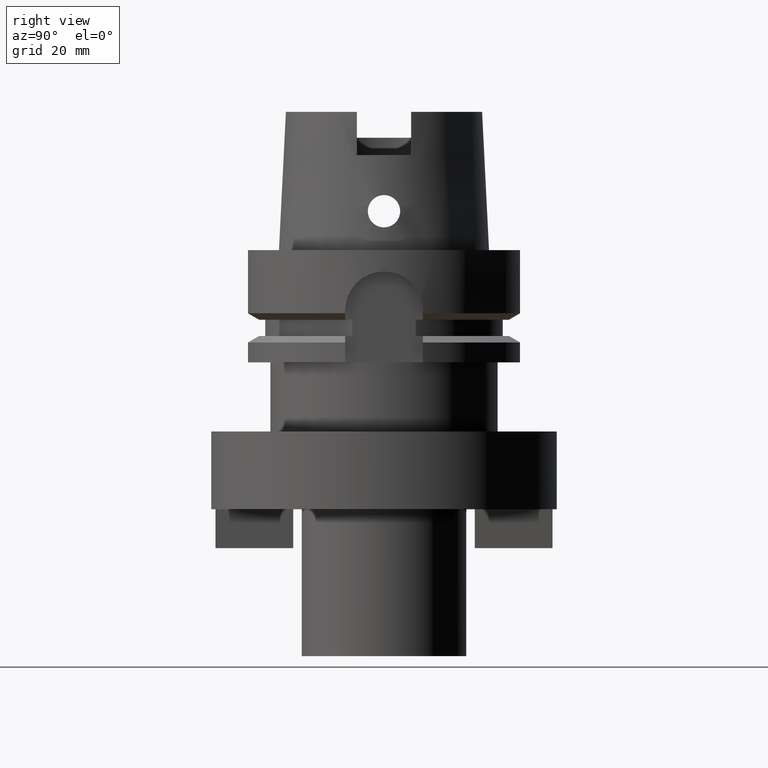
[diagram: clean part render]
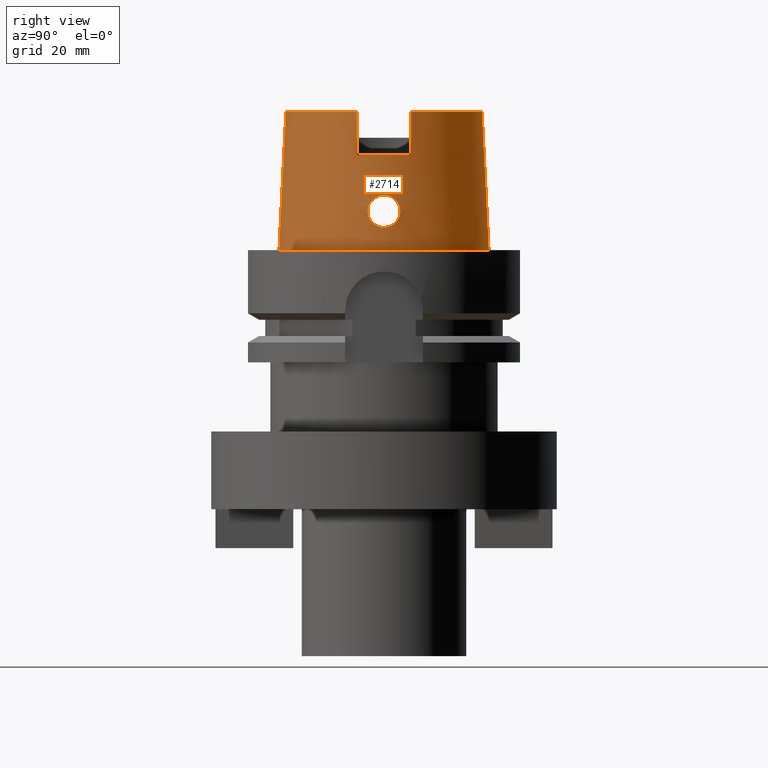
[diagram: same view with one face highlighted and labeled with its STEP entity id]
A machine part, right view. The second image highlights one B-rep face of the part: STEP entity #2714.
In plain terms, the highlighted conical surface has half-angle 2.862 deg.
Its self-contained STEP definition (entity closure, byte-faithful):
#99=CARTESIAN_POINT('',(0.E0,0.E0,3.2E1));
#100=DIRECTION('',(0.E0,0.E0,-1.E0));
#101=DIRECTION('',(9.611492277717E-1,-2.760292773492E-1,0.E0));
#102=AXIS2_PLACEMENT_3D('',#99,#100,#101);
#158=CARTESIAN_POINT('',(0.E0,0.E0,2.2E1));
#159=DIRECTION('',(0.E0,0.E0,-1.E0));
#160=DIRECTION('',(9.628367587079E-1,2.700840167076E-1,0.E0));
#161=AXIS2_PLACEMENT_3D('',#158,#159,#160);
#188=CARTESIAN_POINT('',(0.E0,0.E0,3.2E1));
#189=DIRECTION('',(0.E0,0.E0,-1.E0));
#190=DIRECTION('',(0.E0,1.E0,0.E0));
#191=AXIS2_PLACEMENT_3D('',#188,#189,#190);
#232=DIRECTION('',(0.E0,-4.993926899646E-2,-9.987522562738E-1));
#233=VECTOR('',#232,3.203997768114E1);
#234=CARTESIAN_POINT('',(0.E0,-2.271498175923E1,3.2E1));
#235=LINE('',#234,#233);
#277=CARTESIAN_POINT('',(2.183248717673E1,-6.27E0,3.2E1));
#278=CARTESIAN_POINT('',(2.189029857820E1,-6.27E0,3.088872917781E1));
#279=CARTESIAN_POINT('',(2.200587063692E1,-6.27E0,2.866629343316E1));
#280=CARTESIAN_POINT('',(2.217912536586E1,-6.27E0,2.533296005316E1));
#281=CARTESIAN_POINT('',(2.229456027086E1,-6.27E0,2.311095133481E1));
#282=CARTESIAN_POINT('',(2.235225375678E1,-6.27E0,2.2E1));
#287=CARTESIAN_POINT('',(2.235225375678E1,6.27E0,2.2E1));
#288=CARTESIAN_POINT('',(2.229456027086E1,6.27E0,2.311095133481E1));
#289=CARTESIAN_POINT('',(2.217912536586E1,6.27E0,2.533296005318E1));
#290=CARTESIAN_POINT('',(2.200587063692E1,6.27E0,2.866629343318E1));
#291=CARTESIAN_POINT('',(2.189029857820E1,6.27E0,3.088872917781E1));
#292=CARTESIAN_POINT('',(2.183248717673E1,6.27E0,3.2E1));
#297=DIRECTION('',(0.E0,4.993926899646E-2,-9.987522562738E-1));
#298=VECTOR('',#297,3.203997768114E1);
#299=CARTESIAN_POINT('',(0.E0,2.271498175923E1,3.2E1));
#300=LINE('',#299,#298);
#304=CARTESIAN_POINT('',(2.367751368058E1,-6.834353101066E-14,1.275E1));
#305=CARTESIAN_POINT('',(2.367751368058E1,-3.273385158329E-1,1.275E1));
#306=CARTESIAN_POINT('',(2.366793739617E1,-9.825578395479E-1,1.266377520162E1));
#307=CARTESIAN_POINT('',(2.362981187396E1,-1.900011941695E0,1.228336346712E1));
#308=CARTESIAN_POINT('',(2.358191464856E1,-2.688103610116E0,1.167637136123E1));
#309=CARTESIAN_POINT('',(2.354357325829E1,-3.288821818981E0,1.088964616116E1));
#310=CARTESIAN_POINT('',(2.353292970100E1,-3.664996245814E0,9.975433439343E0));
#311=CARTESIAN_POINT('',(2.356155056661E1,-3.792201675291E0,9.003320279062E0));
#312=CARTESIAN_POINT('',(2.363132646133E1,-3.666190663009E0,8.028242757775E0));
#313=CARTESIAN_POINT('',(2.373410816688E1,-3.290345154702E0,7.112700953509E0));
#314=CARTESIAN_POINT('',(2.385148627791E1,-2.687575013273E0,6.322334536504E0));
#315=CARTESIAN_POINT('',(2.395990467095E1,-1.893937666026E0,5.712776965833E0));
#316=CARTESIAN_POINT('',(2.403486396312E1,-9.758430360055E-1,5.334736581283E0));
#317=CARTESIAN_POINT('',(2.405252611747E1,-3.244503055276E-1,5.25E0));
#318=CARTESIAN_POINT('',(2.405252611747E1,0.E0,5.25E0));
#323=CARTESIAN_POINT('',(2.405252611747E1,0.E0,5.25E0));
#324=CARTESIAN_POINT('',(2.405252611747E1,3.241919777860E-1,5.25E0));
#325=CARTESIAN_POINT('',(2.403484405501E1,9.733368616198E-1,5.334871577068E0));
#326=CARTESIAN_POINT('',(2.396118719089E1,1.880400861345E0,5.706266428785E0));
#327=CARTESIAN_POINT('',(2.385421018901E1,2.670830414383E0,6.306103452243E0));
#328=CARTESIAN_POINT('',(2.373660317885E1,3.279839281651E0,7.093351889440E0));
#329=CARTESIAN_POINT('',(2.363225113575E1,3.664170079775E0,8.016597201610E0));
#330=CARTESIAN_POINT('',(2.356145067355E1,3.793008601993E0,9.002656706629E0));
#331=CARTESIAN_POINT('',(2.353285683294E1,3.663794086633E0,9.980785517996E0));
#332=CARTESIAN_POINT('',(2.354373581534E1,3.286378123235E0,1.089302997635E1));
#333=CARTESIAN_POINT('',(2.358182946346E1,2.689291444577E0,1.167450189497E1));
#334=CARTESIAN_POINT('',(2.362959251262E1,1.904101539269E0,1.228103240625E1));
#335=CARTESIAN_POINT('',(2.366788493431E1,9.851087791571E-1,1.266332345046E1));
#336=CARTESIAN_POINT('',(2.367751368058E1,3.283688743650E-1,1.275E1));
#337=CARTESIAN_POINT('',(2.367751368058E1,-6.834353101066E-14,1.275E1));
#358=CARTESIAN_POINT('',(0.E0,0.E0,9.094947017729E-13));
#359=DIRECTION('',(0.E0,0.E0,1.E0));
#360=DIRECTION('',(0.E0,-1.E0,0.E0));
#361=AXIS2_PLACEMENT_3D('',#358,#359,#360);
#2192=CARTESIAN_POINT('',(0.E0,2.271498175923E1,3.2E1));
#2193=VERTEX_POINT('',#2192);
#2194=CARTESIAN_POINT('',(2.183248717673E1,6.27E0,3.2E1));
#2195=VERTEX_POINT('',#2194);
#2200=CARTESIAN_POINT('',(2.183248717673E1,-6.27E0,3.2E1));
#2201=VERTEX_POINT('',#2200);
#2202=CARTESIAN_POINT('',(0.E0,-2.271498175923E1,3.2E1));
#2203=VERTEX_POINT('',#2202);
#2204=CARTESIAN_POINT('',(0.E0,-2.431503482329E1,6.075140390749E-13));
#2205=VERTEX_POINT('',#2204);
#2206=CARTESIAN_POINT('',(0.E0,2.431503482329E1,9.094947017729E-13));
#2207=VERTEX_POINT('',#2206);
#2210=VERTEX_POINT('',#282);
#2211=CARTESIAN_POINT('',(2.235225375678E1,6.27E0,2.2E1));
#2212=VERTEX_POINT('',#2211);
#2213=VERTEX_POINT('',#304);
#2214=VERTEX_POINT('',#318);
#2692=CARTESIAN_POINT('',(0.E0,0.E0,1.6E1));
#2693=DIRECTION('',(0.E0,0.E0,-1.E0));
#2694=DIRECTION('',(0.E0,-1.E0,0.E0));
#2695=AXIS2_PLACEMENT_3D('',#2692,#2693,#2694);
#2696=CONICAL_SURFACE('',#2695,2.351500829126E1,2.8625E0);
#2697=ORIENTED_EDGE('',*,*,#2618,.T.);
#2698=ORIENTED_EDGE('',*,*,#2631,.F.);
#2699=ORIENTED_EDGE('',*,*,#2644,.T.);
#2700=ORIENTED_EDGE('',*,*,#2659,.F.);
#2701=ORIENTED_EDGE('',*,*,#2680,.T.);
#2703=ORIENTED_EDGE('',*,*,#2702,.F.);
#2704=ORIENTED_EDGE('',*,*,#2676,.F.);
#2705=ORIENTED_EDGE('',*,*,#2581,.F.);
#2706=EDGE_LOOP('',(#2697,#2698,#2699,#2700,#2701,#2703,#2704,#2705));
#2707=FACE_OUTER_BOUND('',#2706,.F.);
#2709=ORIENTED_EDGE('',*,*,#2708,.T.);
#2711=ORIENTED_EDGE('',*,*,#2710,.T.);
#2712=EDGE_LOOP('',(#2709,#2711));
#2713=FACE_BOUND('',#2712,.F.);
#103=CIRCLE('',#102,2.271498175923E1);
#162=CIRCLE('',#161,2.321499834175E1);
#192=CIRCLE('',#191,2.271498175923E1);
#283=B_SPLINE_CURVE_WITH_KNOTS('',3,(#277,#278,#279,#280,#281,#282),
.UNSPECIFIED.,.F.,.F.,(4,1,1,4),(0.E0,3.333333333333E-1,6.666666666667E-1,1.E0),
.UNSPECIFIED.);
#293=B_SPLINE_CURVE_WITH_KNOTS('',3,(#287,#288,#289,#290,#291,#292),
.UNSPECIFIED.,.F.,.F.,(4,1,1,4),(0.E0,3.333333333333E-1,6.666666666667E-1,1.E0),
.UNSPECIFIED.);
#319=B_SPLINE_CURVE_WITH_KNOTS('',3,(#304,#305,#306,#307,#308,#309,#310,#311,
#312,#313,#314,#315,#316,#317,#318),.UNSPECIFIED.,.F.,.F.,(4,1,1,1,1,1,1,1,1,1,
1,1,4),(0.E0,8.333333333333E-2,1.666666666667E-1,2.5E-1,3.333333333333E-1,
4.166666666667E-1,5.E-1,5.833333333333E-1,6.666666666667E-1,7.5E-1,
8.333333333333E-1,9.166666666667E-1,1.E0),.UNSPECIFIED.);
#338=B_SPLINE_CURVE_WITH_KNOTS('',3,(#323,#324,#325,#326,#327,#328,#329,#330,
#331,#332,#333,#334,#335,#336,#337),.UNSPECIFIED.,.F.,.F.,(4,1,1,1,1,1,1,1,1,1,
1,1,4),(0.E0,8.333333333333E-2,1.666666666667E-1,2.5E-1,3.333333333333E-1,
4.166666666667E-1,5.E-1,5.833333333333E-1,6.666666666667E-1,7.5E-1,
8.333333333333E-1,9.166666666667E-1,1.E0),.UNSPECIFIED.);
#362=CIRCLE('',#361,2.431503482329E1);
#2581=EDGE_CURVE('',#2201,#2203,#103,.T.);
#2618=EDGE_CURVE('',#2201,#2210,#283,.T.);
#2631=EDGE_CURVE('',#2212,#2210,#162,.T.);
#2644=EDGE_CURVE('',#2212,#2195,#293,.T.);
#2659=EDGE_CURVE('',#2193,#2195,#192,.T.);
#2676=EDGE_CURVE('',#2203,#2205,#235,.T.);
#2680=EDGE_CURVE('',#2193,#2207,#300,.T.);
#2702=EDGE_CURVE('',#2205,#2207,#362,.T.);
#2708=EDGE_CURVE('',#2213,#2214,#319,.T.);
#2710=EDGE_CURVE('',#2214,#2213,#338,.T.);
#2714=ADVANCED_FACE('',(#2707,#2713),#2696,.T.);